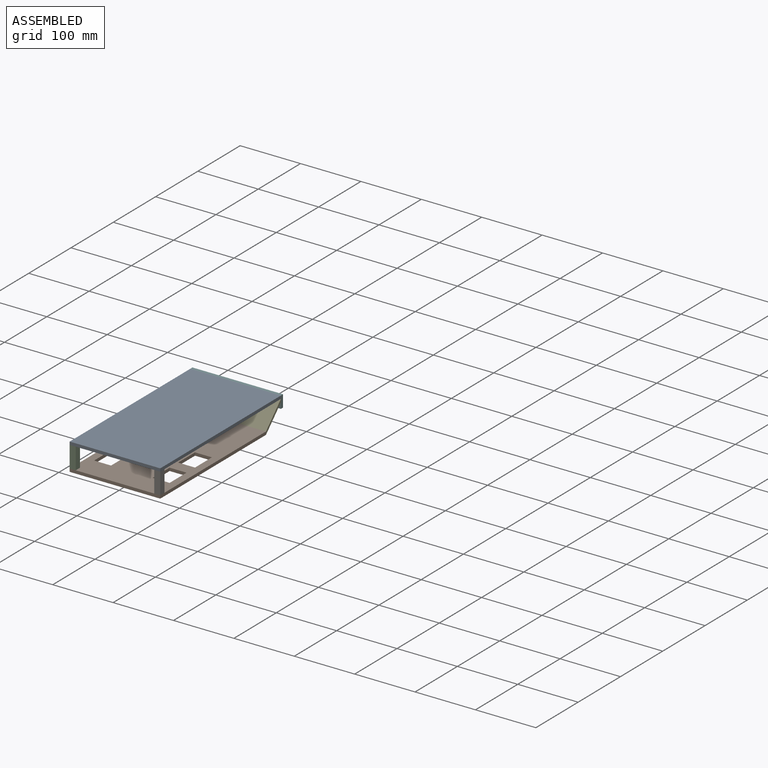
[diagram: assembled view]
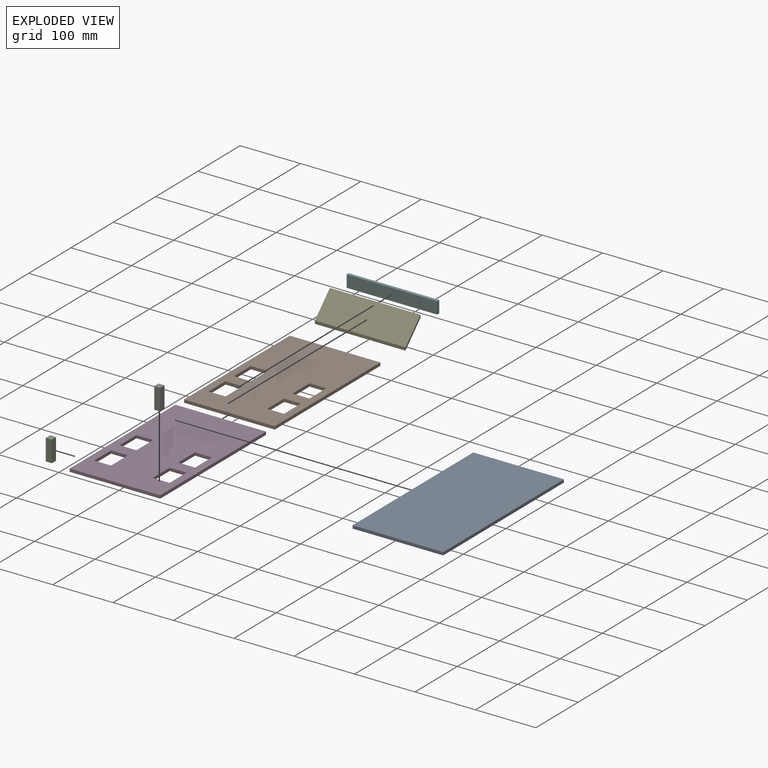
[diagram: exploded view]
GUIDED TOUR — MATED ASSEMBLY (Onshape document d2072caae8d79b5c346bab7c, AutoMate assembly d2072caae8d79b5c346bab7c_b20baa60ffd6bb33e6a9a9ef_837ad6590ced500842638af0_default)

This assembly has 7 components, labeled P0..P6 below (a component is one placed occurrence of a part; the same part can appear more than once), held together by 5 mates. A mate is a constraint between two components; its type names the relative motion it leaves free:
  PARALLEL — keeps the two listed directions parallel.
Axis/direction vectors are unit vectors and 'through' points are millimeter coordinates, both in the assembly's world frame.

MATES
  1. PARALLEL "Parallel 4": P2 <-> P3, direction (0.000, 0.000, 1.000) through (-182.77, -198.87, -14.98) mm
  2. PARALLEL "Parallel 1": P4 <-> P3, direction (-1.000, 0.000, 0.000) through (-107.77, 51.13, -14.98) mm
  3. PARALLEL "Parallel 2": P0 <-> P4, direction (1.000, 0.000, 0.000) through (-107.77, 86.48, 20.37) mm
  4. PARALLEL "Parallel 3": P5 <-> P0, direction (1.000, 0.000, 0.000) through (-107.77, 86.48, 25.37) mm
  5. PARALLEL "Parallel 5": P6 <-> P3, direction (0.000, 0.000, 1.000) through (-32.77, -198.87, -14.98) mm

ASSEMBLY ORDER
  1. P3 — the base component [order verified]
  2. P1 [order verified]
  3. P2 [order verified]
  4. P6 [order verified]
  5. P4 [order verified]
  6. P0 [order verified]
  7. P5 [order verified]
Order-tag legend:
  [order verified] — this step's position reverses a verified removal order: the component was checked to insert without passing through the ones already placed.

Of the 7 components, 2 carry the full construction recipe — the FeatureScript program that regenerates the part's solid from scratch; the rest are supplied as boundary geometry only.
Each toured component is shown spotlighted twice — in the assembled view, then in the exploded view, where a leader line traces a displaced component back to its assembled socket (saturated green if recipe-attached, orange if geometry-only; every other component desaturated gray) — followed by its recipe or geometry summary and the mates that hold it.
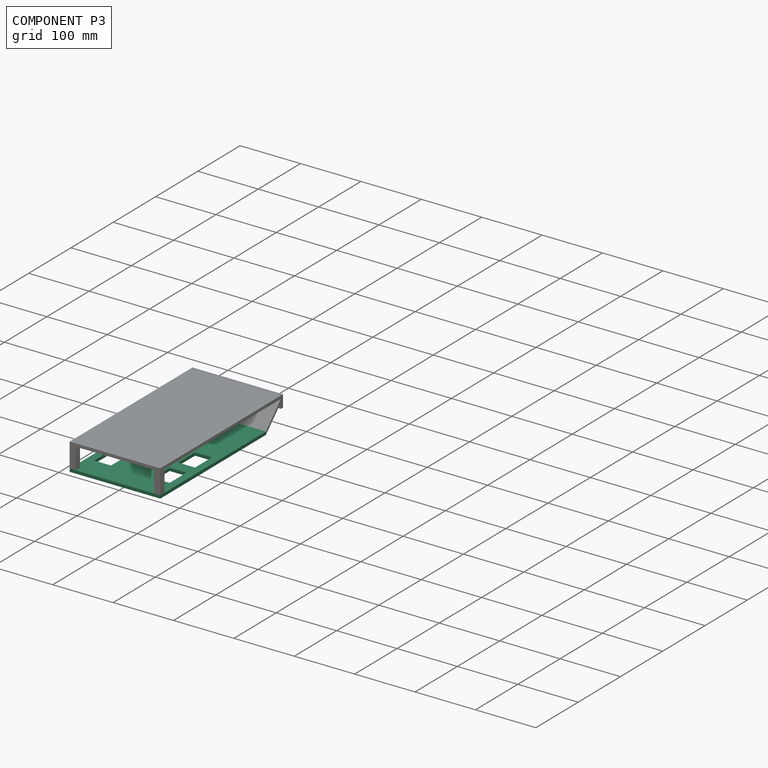
[diagram: component P3 — assembled]
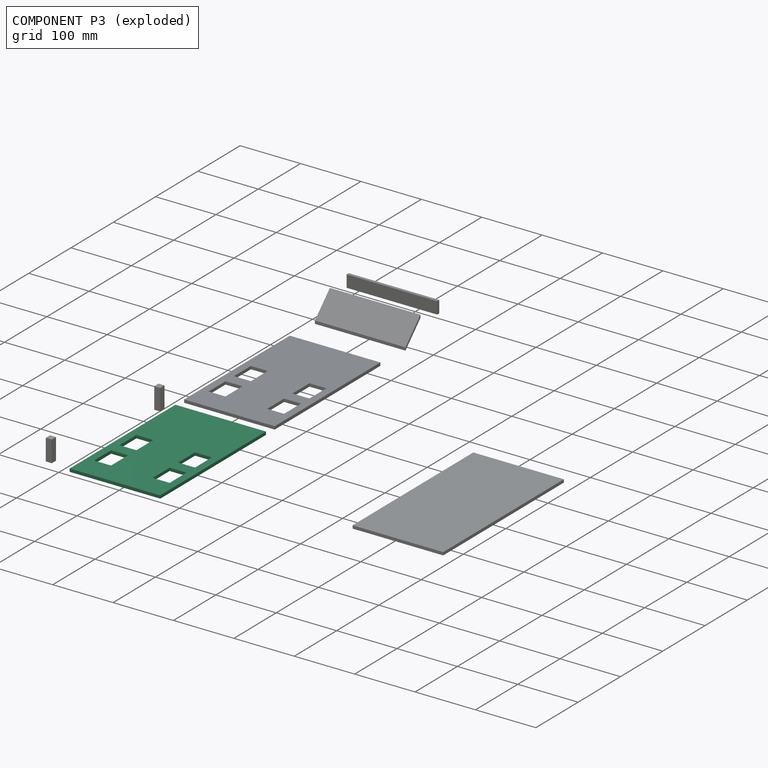
[diagram: component P3 — exploded]
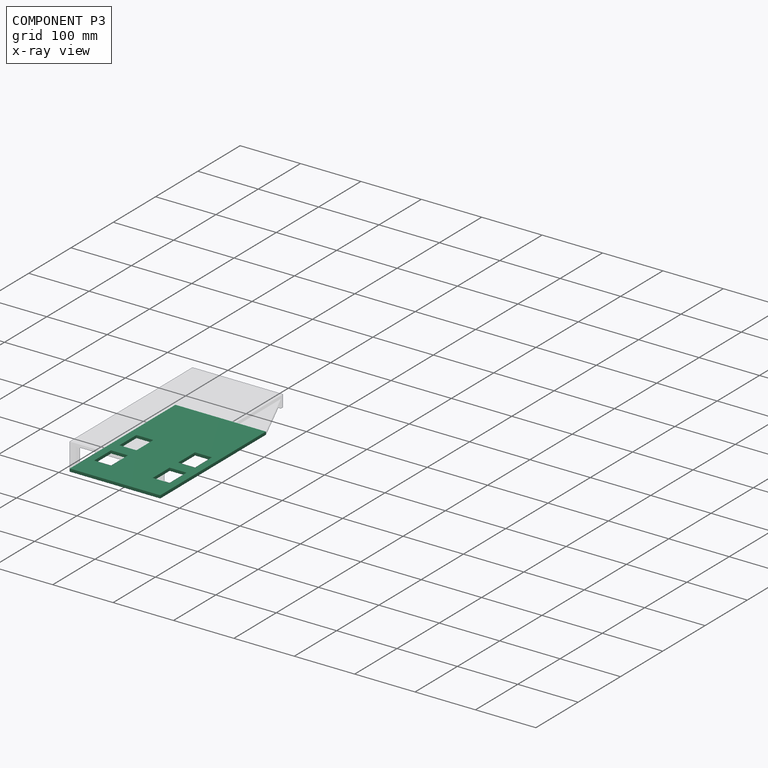
[diagram: component P3 — x-ray view]
COMPONENT P3 — same part as P1 (CADFS 00284297); its construction recipe is shown at P1.
Held by: PARALLEL mate "Parallel 4" to P2; PARALLEL mate "Parallel 1" to P4; PARALLEL mate "Parallel 5" to P6.
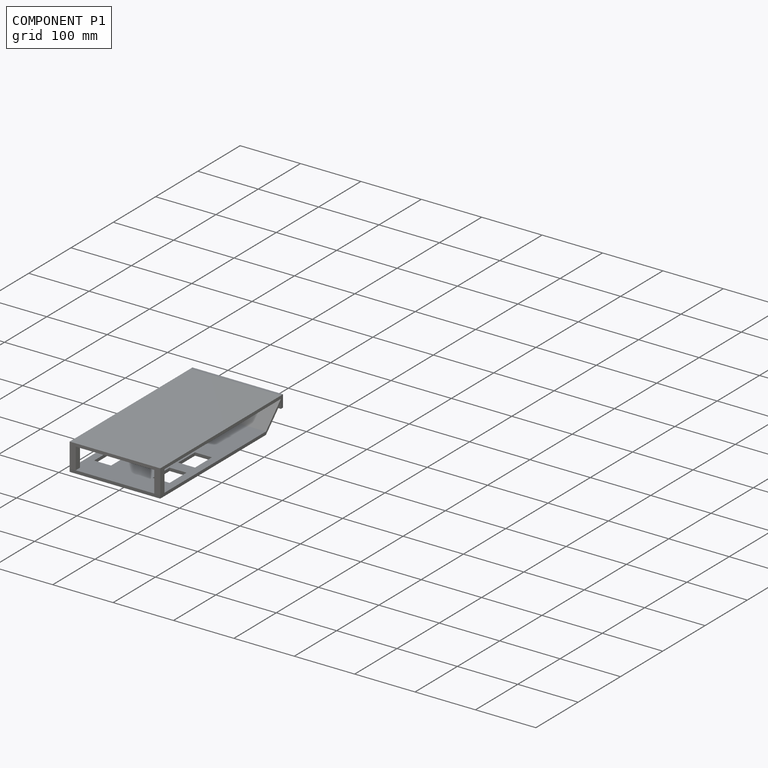
[diagram: component P1 — assembled]
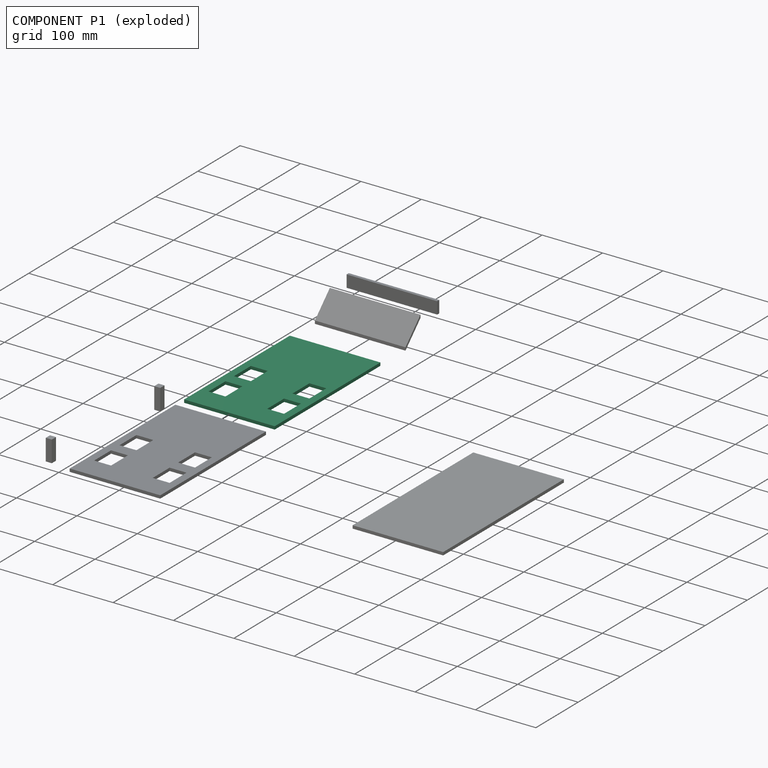
[diagram: component P1 — exploded]
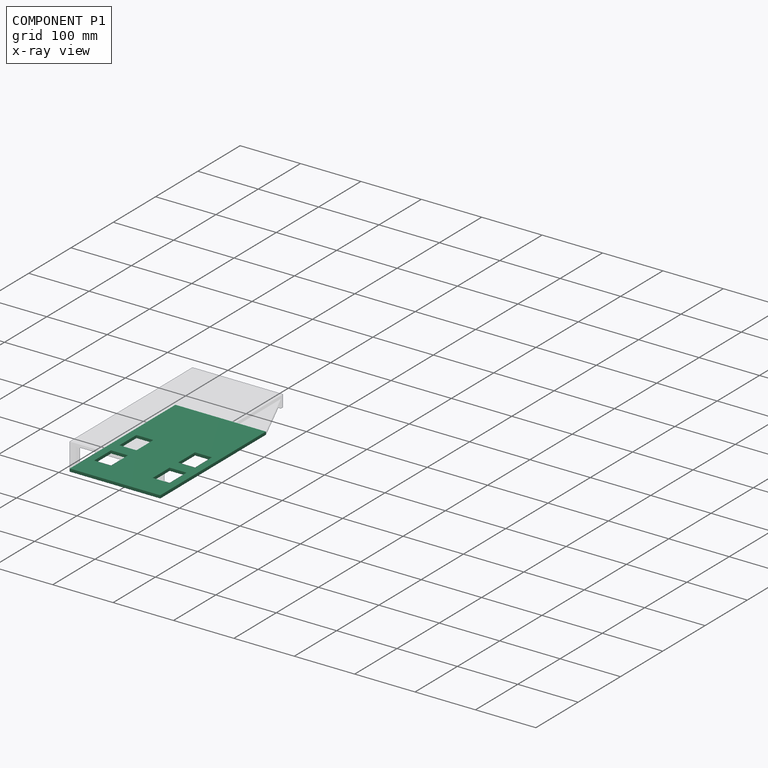
[diagram: component P1 — x-ray view]
COMPONENT P1 — recipe-attached (CADFS 00284297, mesh-verified: the recipe's output STEP matches this component's geometry to below the mesh-comparison resolution (tessellation chordal tolerance ~0.437 mm)).
Held by: no mates (free).
Construction recipe (FeatureScript — the CAD program that rebuilds this solid; sketch coordinates are in the units given by the * unit suffixes, e.g. mm):

FeatureScript 1511;
import(path : "onshape/std/geometry.fs", version : "1511.0");
import(path : "onshape/std/common.fs", version : "1511.0");
const mm = millimeter;
const VERTEX = EntityType.VERTEX;
const EDGE = EntityType.EDGE;
const FACE = EntityType.FACE;
const BODY = EntityType.BODY;
function v(x, y){return vector(x, y);}
function OD(order){return orderDisambiguation(order);}
function OSD(set){return originalSetDisambiguation(set);}
function TD(topology){return topologyDisambiguation(topology);}
function TDD(query){return trueDependencyDisambiguation(query);}
function sQuery(a, b, c) {return sketchEntityQuery(a, b, c);}

annotation { "Feature Type Name" : "Feature", "Feature Type Description" : "" }
export const myFeature = defineFeature(function(context is Context, id is Id, definition is map)
    precondition{}
    {
        {
            var Q0;
            Q0=qCreatedBy(makeId("Top.planeOp"),FACE);
            var sketch = newSketch(context, id + "F0", { "sketchPlane" : qUnion([Q0])});
            skPoint(sketch, "E0.end.orphan", {"position": v(-58.89, 233.8) * mm});
            skPoint(sketch, "E1.start.orphan", {"position": v(-58.89, 206.99) * mm});
            skPoint(sketch, "E2.start.orphan", {"position": v(262.9, 233.8) * mm});
            skPoint(sketch, "E3.end.orphan", {"position": v(262.9, 180.17) * mm});
            skPoint(sketch, "E4.right.end.orphan", {"position": v(-58.89, 180.17) * mm});
            skLineSegment(sketch, "E5", {"start": v(-100.53, 59.03) * mm, "end": v(-100.53, -190.97) * mm});
            skLineSegment(sketch, "E6", {"start": v(-100.53, 59.03) * mm, "end": v(49.47, 59.03) * mm});
            skLineSegment(sketch, "E7", {"start": v(49.47, 59.03) * mm, "end": v(49.47, -190.97) * mm});
            skLineSegment(sketch, "E8", {"start": v(-100.53, -190.97) * mm, "end": v(49.47, -190.97) * mm});
            skLineSegment(sketch, "E9", {"start": v(-88.03, -150.97) * mm, "end": v(-100.53, -150.97) * mm});
            skLineSegment(sketch, "E10", {"start": v(-100.53, -150.97) * mm, "end": v(-88.03, -150.97) * mm});
            skPoint(sketch, "E11.start.orphan", {"position": v(-25.53, -190.97) * mm});
            skPoint(sketch, "E12.orphan", {"position": v(24.47, -150.97) * mm});
            skPoint(sketch, "E13.end.orphan", {"position": v(49.47, -150.97) * mm});
            skPoint(sketch, "E13.start.orphan", {"position": v(36.97, -150.97) * mm});
            skLineSegment(sketch, "E14", {"start": v(-88.03, -150.97) * mm, "end": v(-88.03, -110.97) * mm});
            skLineSegment(sketch, "E15", {"start": v(36.97, -150.97) * mm, "end": v(36.97, -110.97) * mm});
            skLineSegment(sketch, "E16", {"start": v(-88.03, -110.97) * mm, "end": v(-60.03, -110.97) * mm});
            skLineSegment(sketch, "E17", {"start": v(36.97, -110.97) * mm, "end": v(8.97, -110.97) * mm});
            skLineSegment(sketch, "E18", {"start": v(8.97, -110.97) * mm, "end": v(8.97, -150.97) * mm});
            skLineSegment(sketch, "E19", {"start": v(8.97, -150.97) * mm, "end": v(36.97, -150.97) * mm});
            skLineSegment(sketch, "E20", {"start": v(-60.03, -110.97) * mm, "end": v(-60.03, -150.97) * mm});
            skLineSegment(sketch, "E21", {"start": v(-60.03, -150.97) * mm, "end": v(-88.03, -150.97) * mm});
            skLineSegment(sketch, "E22", {"start": v(-88.03, -150.97) * mm, "end": v(-60.03, -150.97) * mm});
            skLineSegment(sketch, "E23", {"start": v(-88.03, -90.97) * mm, "end": v(-60.03, -90.97) * mm});
            skLineSegment(sketch, "E24", {"start": v(-88.03, -90.97) * mm, "end": v(-88.03, -50.97) * mm});
            skLineSegment(sketch, "E25", {"start": v(-88.03, -50.97) * mm, "end": v(-60.03, -50.97) * mm});
            skLineSegment(sketch, "E26", {"start": v(-60.03, -50.97) * mm, "end": v(-60.03, -90.97) * mm});
            skLineSegment(sketch, "E27", {"start": v(8.97, -90.97) * mm, "end": v(36.97, -90.97) * mm});
            skLineSegment(sketch, "E28", {"start": v(8.97, -90.97) * mm, "end": v(8.97, -50.97) * mm});
            skLineSegment(sketch, "E29", {"start": v(8.97, -50.97) * mm, "end": v(36.97, -50.97) * mm});
            skLineSegment(sketch, "E30", {"start": v(36.97, -50.97) * mm, "end": v(36.97, -90.97) * mm});
            skLineSegment(sketch, "E31", {"start": v(36.97, -150.97) * mm, "end": v(8.97, -150.97) * mm});
            skSolve(sketch);
        }
        {
            var Q0;
            {var subQ1=sQuery(id+"F0.wireOp",EDGE,"E6");Q0=makeQuery(id+"F0.imprint","IMPRINT",FACE,{"disambiguationData":[TD([[makeQuery(id+"F0.imprint","IMPRINT",EDGE,{"derivedFrom":subQ1}),-1.0]])]});}
            extrude(context, id + "F1", {"entities" : qUnion([Q0]), "depth" : 5 * mm});
        }
    });
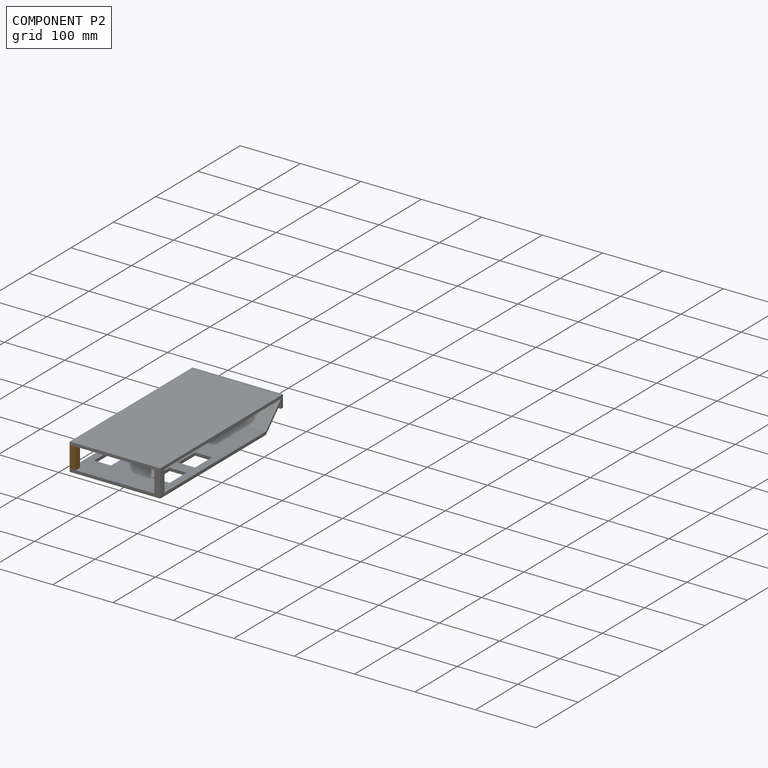
[diagram: component P2 — assembled]
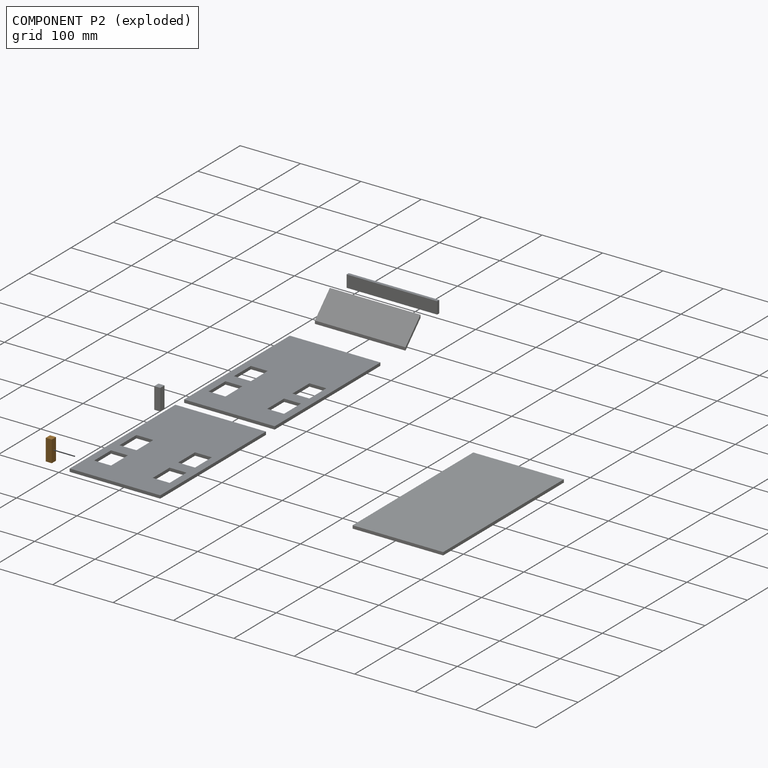
[diagram: component P2 — exploded]
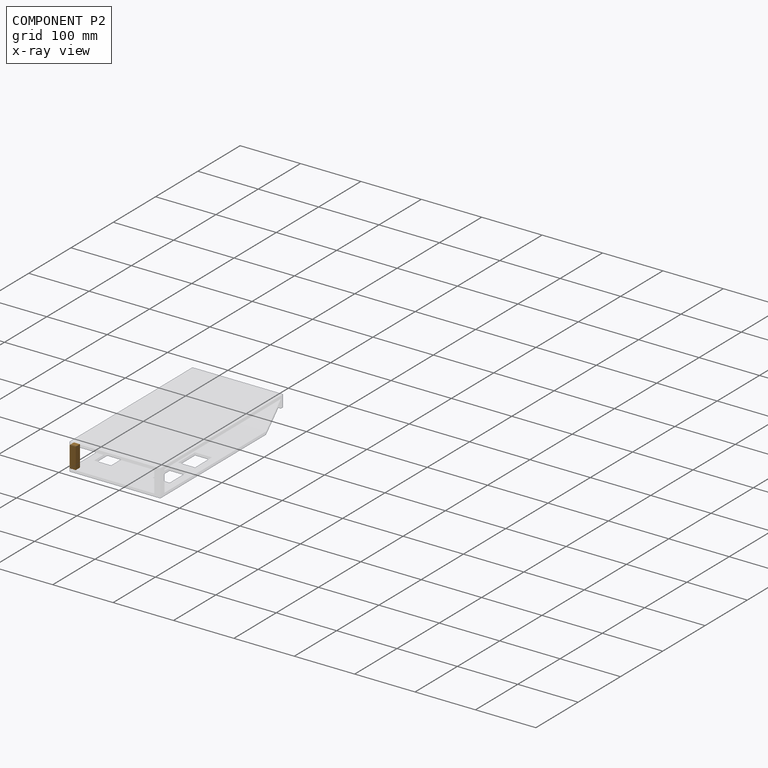
[diagram: component P2 — x-ray view]
COMPONENT P2 — geometry summary (no construction recipe available for this part):
  bounding box: 35.4 x 10.0 x 10.0 mm
  B-rep topology: 1 solid, 6 faces, 24 edges
  volume: 3536 mm^3 (100% of its bounding box)
  symmetry: 2-fold rotationally symmetric about the x axis; 2-fold rotationally symmetric about the y axis; 4-fold rotationally symmetric about the z axis; mirror-symmetric across its x mid-plane, y mid-plane, z mid-plane
Held by: PARALLEL mate "Parallel 4" to P3.
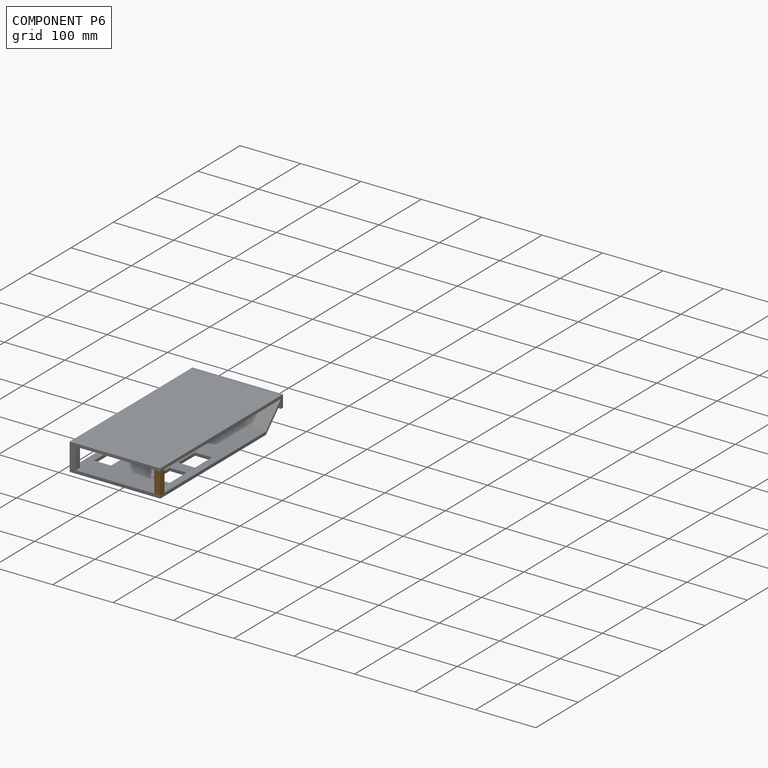
[diagram: component P6 — assembled]
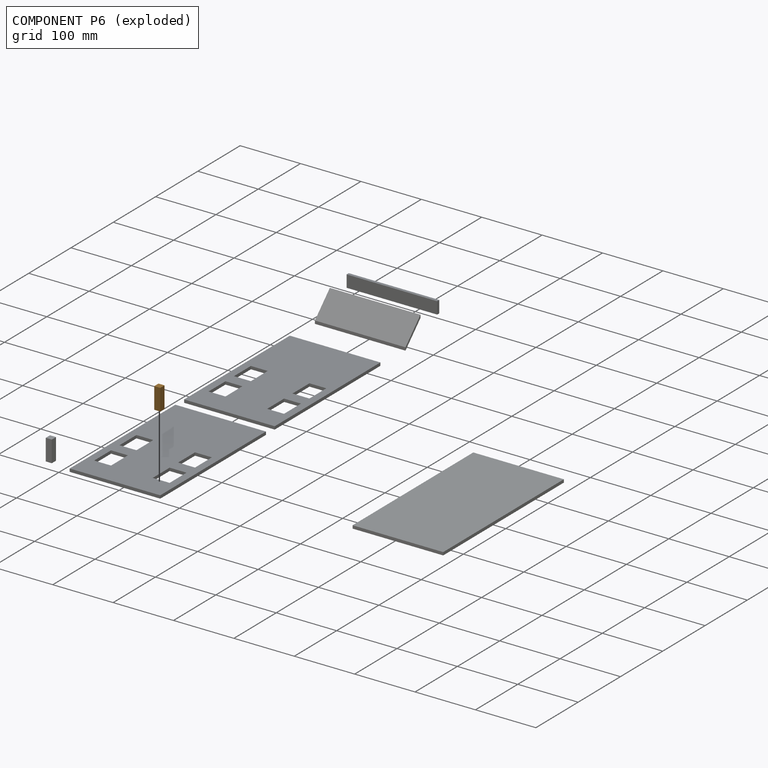
[diagram: component P6 — exploded]
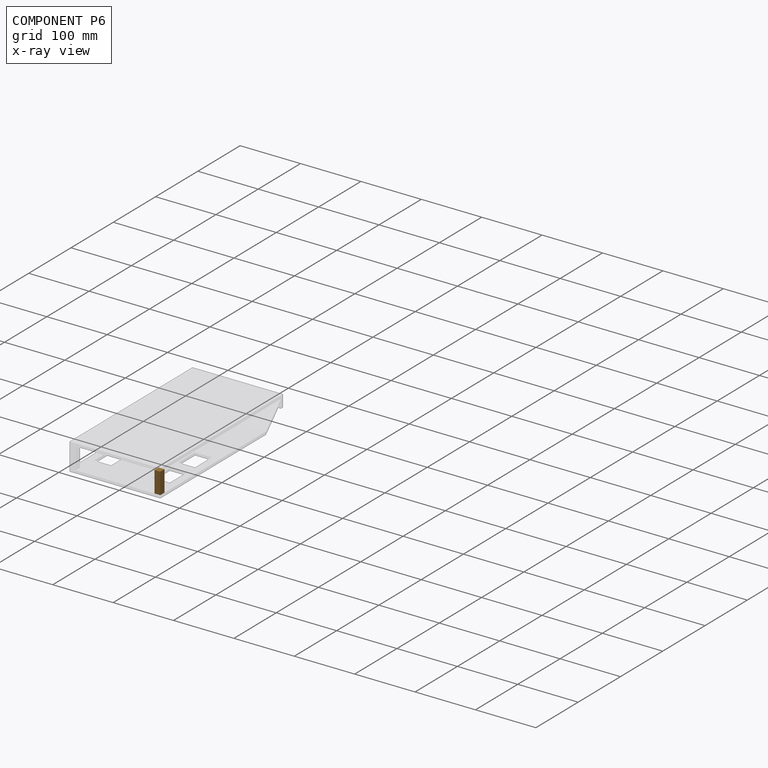
[diagram: component P6 — x-ray view]
COMPONENT P6 — geometry summary (no construction recipe available for this part):
  bounding box: 35.4 x 10.0 x 10.0 mm
  B-rep topology: 1 solid, 6 faces, 24 edges
  volume: 3536 mm^3 (100% of its bounding box)
  symmetry: 2-fold rotationally symmetric about the x axis; 2-fold rotationally symmetric about the y axis; 4-fold rotationally symmetric about the z axis; mirror-symmetric across its x mid-plane, y mid-plane, z mid-plane
Held by: PARALLEL mate "Parallel 5" to P3.
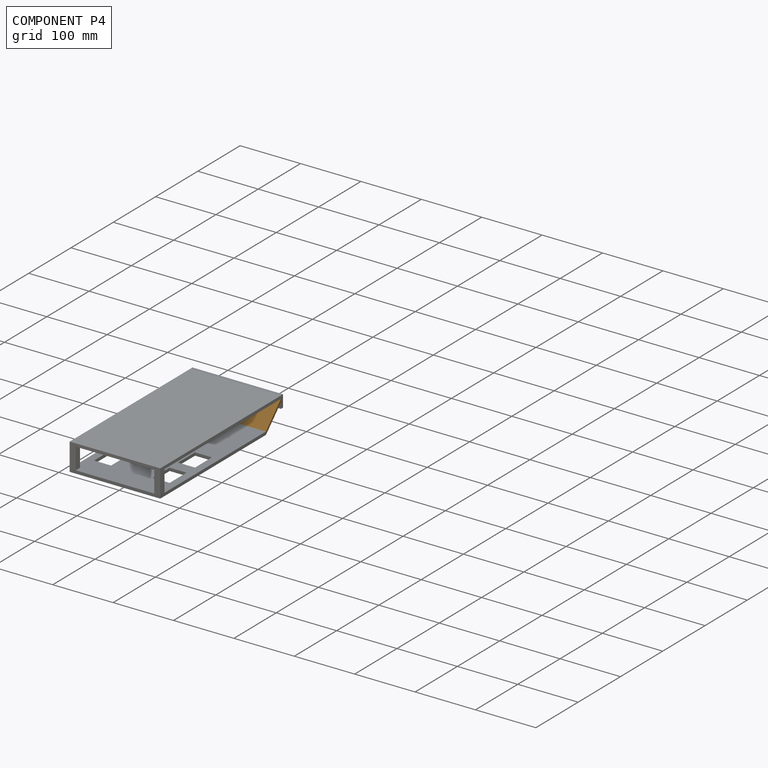
[diagram: component P4 — assembled]
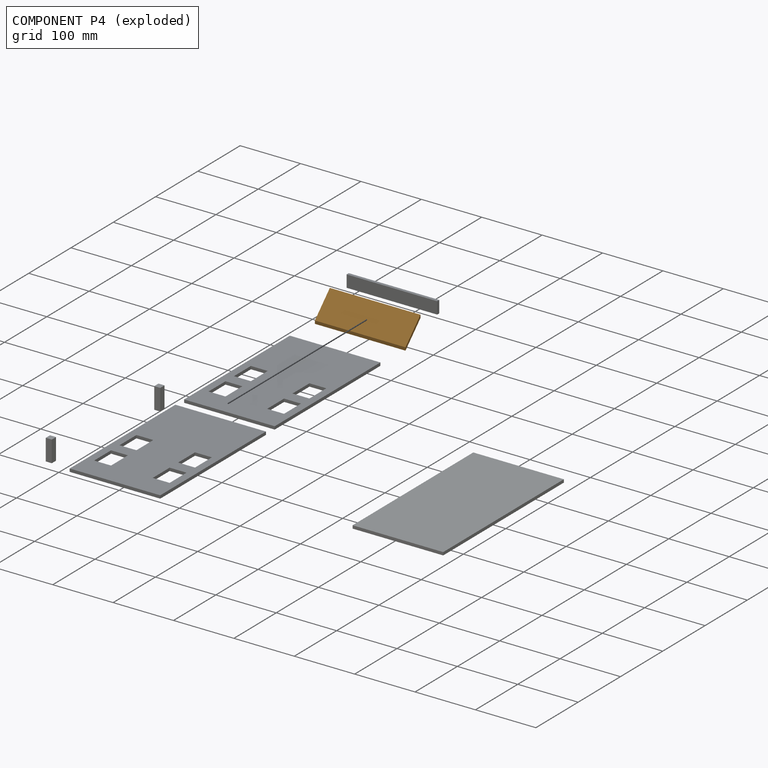
[diagram: component P4 — exploded]
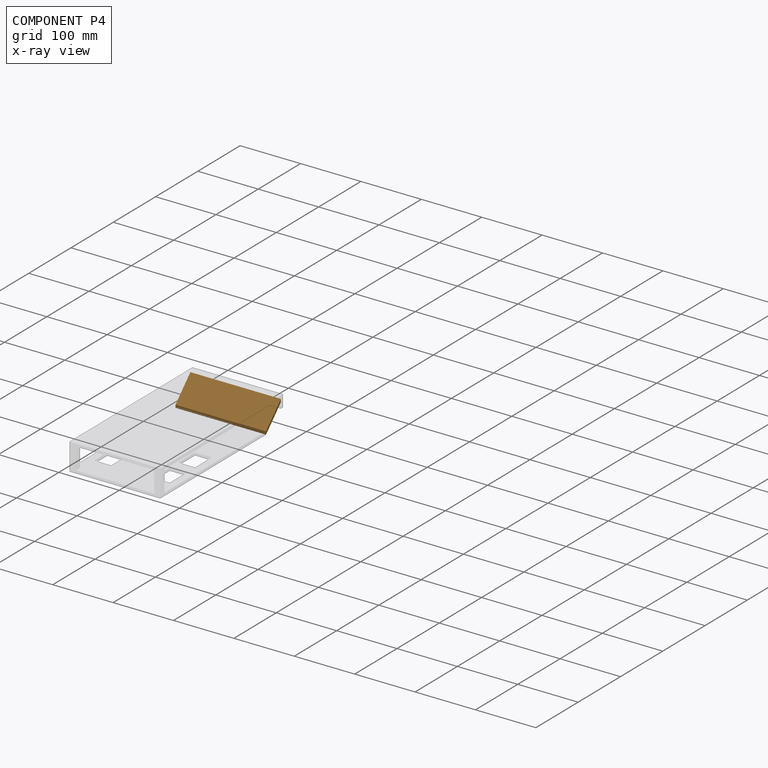
[diagram: component P4 — x-ray view]
COMPONENT P4 — geometry summary (no construction recipe available for this part):
  bounding box: 150.0 x 40.4 x 35.4 mm
  B-rep topology: 1 solid, 6 faces, 24 edges
  volume: 26517 mm^3 (12% of its bounding box)
  symmetry: 2-fold rotationally symmetric about the x axis; mirror-symmetric across its x mid-plane
Held by: PARALLEL mate "Parallel 1" to P3; PARALLEL mate "Parallel 2" to P0.
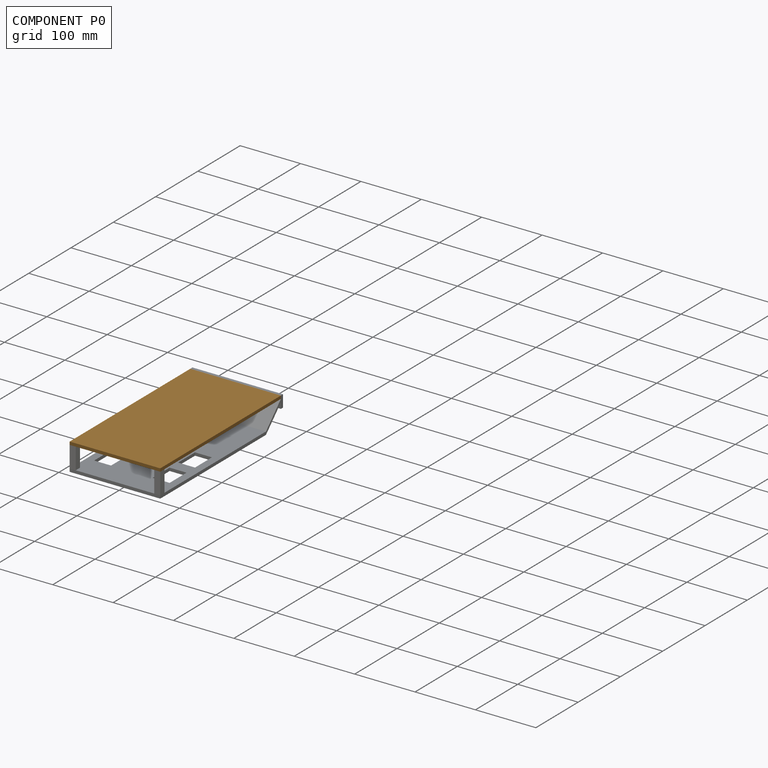
[diagram: component P0 — assembled]
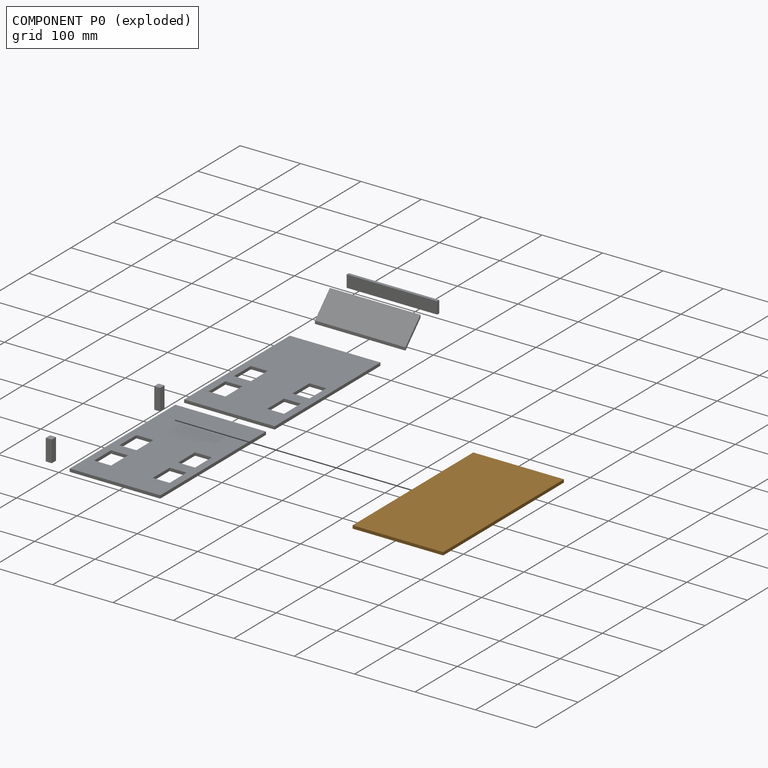
[diagram: component P0 — exploded]
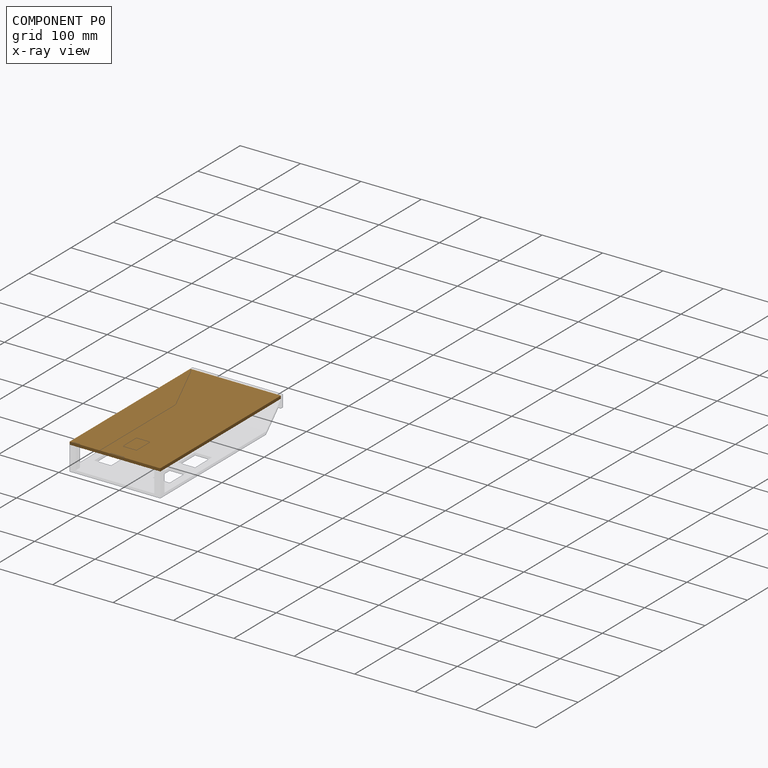
[diagram: component P0 — x-ray view]
COMPONENT P0 — geometry summary (no construction recipe available for this part):
  bounding box: 285.4 x 150.0 x 5.0 mm
  B-rep topology: 1 solid, 6 faces, 24 edges
  volume: 214017 mm^3 (100% of its bounding box)
  symmetry: 2-fold rotationally symmetric about the x axis; 2-fold rotationally symmetric about the y axis; 2-fold rotationally symmetric about the z axis; mirror-symmetric across its x mid-plane, y mid-plane, z mid-plane
Held by: PARALLEL mate "Parallel 2" to P4; PARALLEL mate "Parallel 3" to P5.
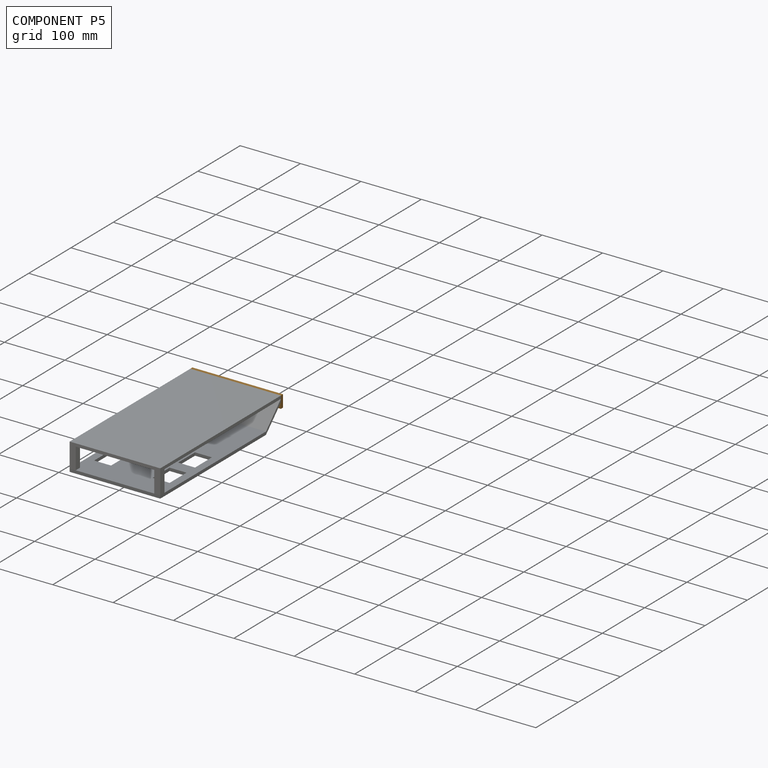
[diagram: component P5 — assembled]
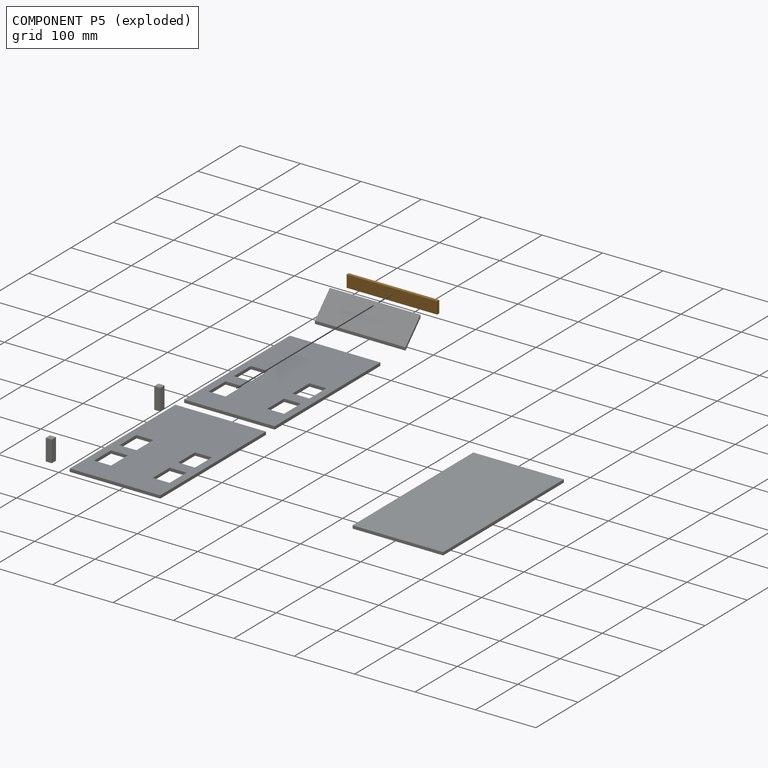
[diagram: component P5 — exploded]
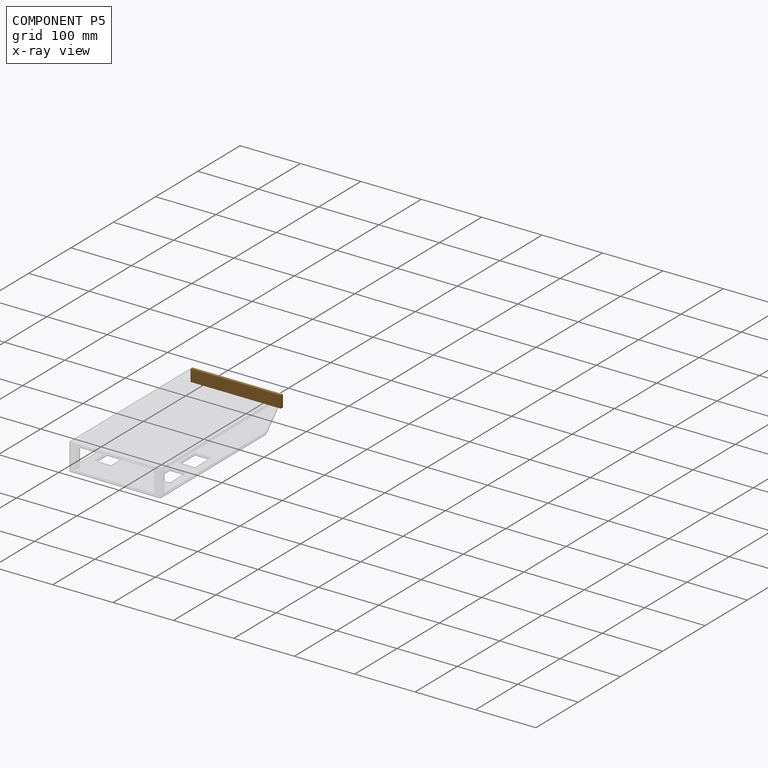
[diagram: component P5 — x-ray view]
COMPONENT P5 — geometry summary (no construction recipe available for this part):
  bounding box: 150.0 x 20.0 x 5.0 mm
  B-rep topology: 1 solid, 6 faces, 24 edges
  volume: 15000 mm^3 (100% of its bounding box)
  symmetry: 2-fold rotationally symmetric about the x axis; 2-fold rotationally symmetric about the y axis; 2-fold rotationally symmetric about the z axis; mirror-symmetric across its x mid-plane, y mid-plane, z mid-plane
Held by: PARALLEL mate "Parallel 3" to P0.
PROVENANCE & LICENSES
Assembly (occurrences, transforms, mates, per-part STEP geometry): AutoMate dataset, Zenodo record 7776208, CC0.
Construction recipes: CADFS (HuggingFace VladPyatov/CADFS, CC-BY-4.0, layered over the ABC dataset), FeatureScript reconstruction programs keyed by ABC model id.
Join: ABC meta listings map ABC model id -> Onshape documentId; within a shared document, parts are matched by geometric signature (bounding-box dims + volume at 0.1% relative tolerance, exact B-rep face/solid counts).
Verification: 2 of this assembly's 7 components carry a recipe attachment, and every attachment is mesh-verified: the CADFS STEP and the AutoMate member STEP were compared as meshes in their shared local frame (symmetric sampled-point-to-mesh distance); worst across the 2 attachments: below the mesh-comparison resolution (tessellation chordal tolerance ~0.437 mm) on a 292 mm part.
Renders: orthographic iso camera (az 35 / el 25); the floor grid conveys scale (grid pitch printed in each image; no ruler). In the exploded view each component is displaced by its stored offset vector: the offsets alone carry the explosion direction (mate normal/axis signs are not orientation cues and do not encode it), and separation distances are assigned per mate-chain, not proportionally to assembly-order depth.
